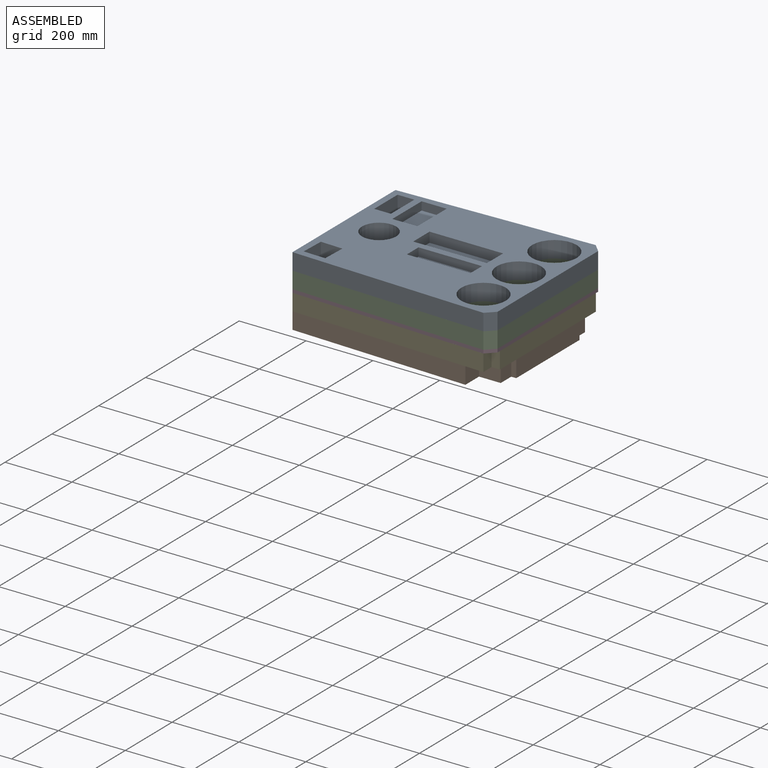
[diagram: assembled view]
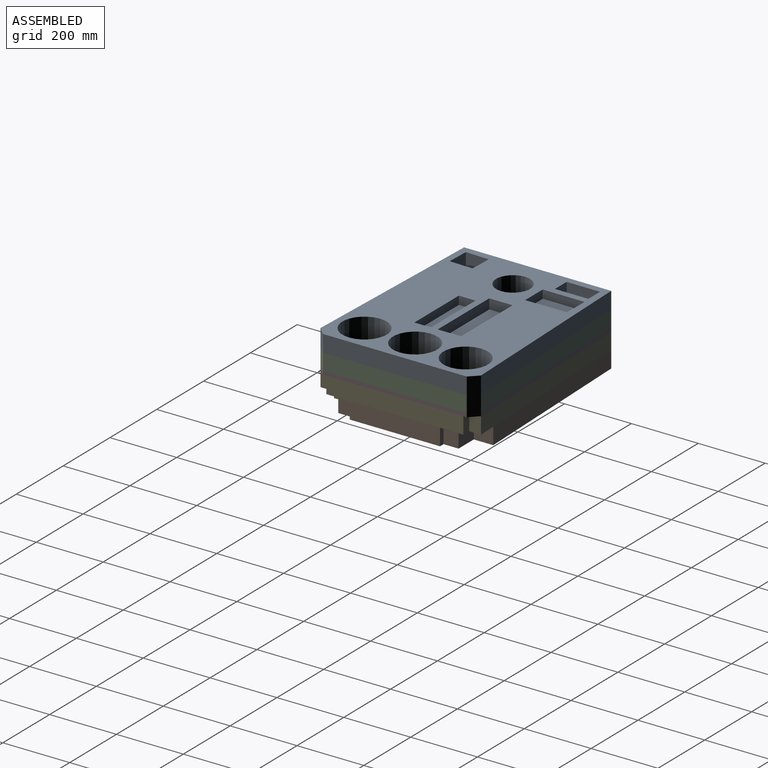
[diagram: assembled view, second angle]
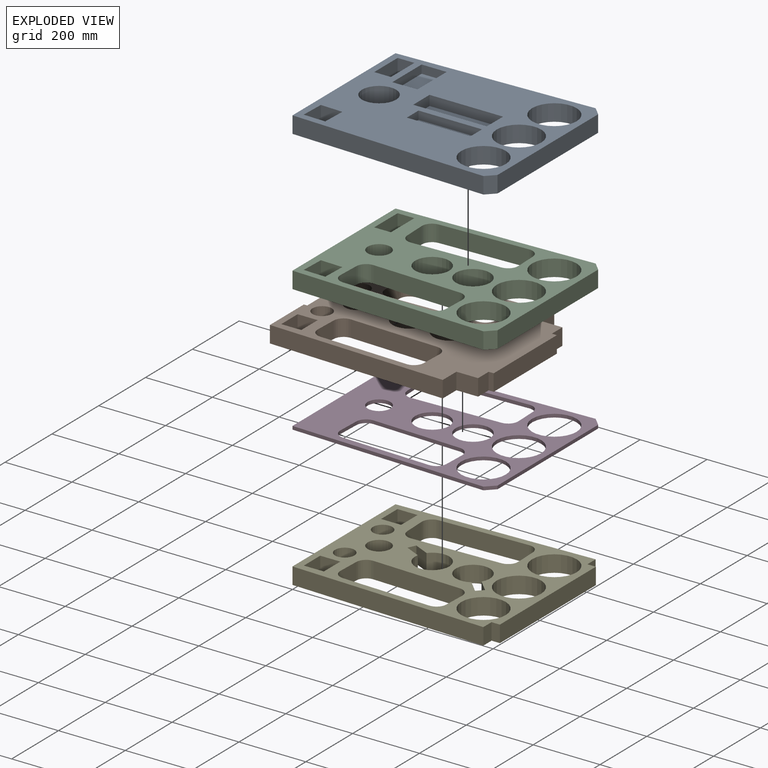
[diagram: exploded view]
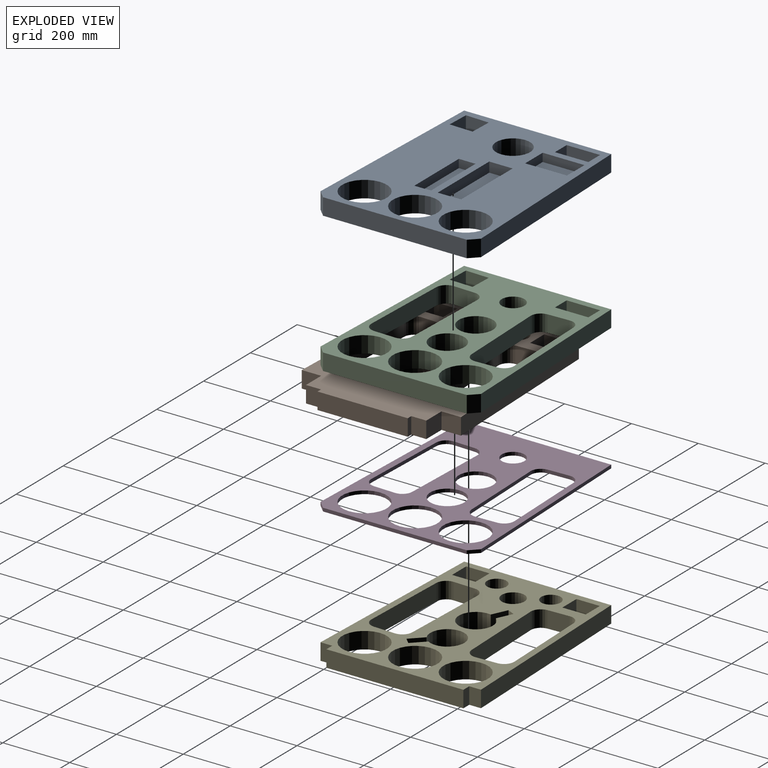
[diagram: exploded view, second angle]
ASSEMBLY  parts=5 mates=12
PART A: 35 faces, bbox 610x480x50 mm
  f0: plane 610x480mm, normal (0,0,1), area 186730mm2, adj f1,f2,f3,f4,f5,f6,f8,f9
  f1: plane 50x25mm, normal (0.71,0.71,0), area 1767.8mm2, adj f0,f2,f6,f7
  f2: plane 585x50mm, normal (-0.03,1,0), area 29267.1mm2, adj f0,f1,f3,f7
  f3: plane 440x50mm, normal (-1,0,0), area 22000mm2, adj f0,f2,f4,f7
  f4: plane 585x50mm, normal (-0.03,-1,0), area 29267.1mm2, adj f0,f3,f5,f7
  f5: plane 50x25mm, normal (0.71,-0.71,0), area 1767.8mm2, adj f0,f4,f6,f7
  f6: plane 430x50mm, normal (1,0,0), area 21500mm2, adj f0,f1,f5,f7
  f7: plane 610x480mm, normal (0,0,-1), area 221005mm2, adj f1,f2,f3,f4,f5,f6,f8,f9
  f8: cylinder r=66.5mm len=133mm, axis (0,0,1), area 20891.6mm2, adj f0,f7
  f9: cylinder r=66.5mm len=133mm, axis (0,0,1), area 20891.6mm2, adj f0,f7
  f10: cylinder r=66.5mm len=133mm, axis (0,0,1), area 20891.6mm2, adj f0,f7
  f11: cylinder r=51mm len=102mm, axis (0,0,1), area 16022.1mm2, adj f0,f7
  f12: plane 220x30mm, normal (0,-1,0), area 6600mm2, adj f0,f13,f15,f16
  f13: plane 70x30mm, normal (1,0,0), area 2100mm2, adj f0,f12,f14,f16
  f14: plane 220x30mm, normal (0,1,0), area 6600mm2, adj f0,f13,f15,f16
  f15: plane 70x30mm, normal (-1,0,0), area 2100mm2, adj f0,f12,f14,f16
  f16: plane 220x70mm, normal (0,0,1), area 15400mm2, adj f12,f13,f14,f15
  f17: plane 69.96x50mm, normal (1,-0.03,0), area 3500mm2, adj f0,f7,f18,f19
  f18: plane 65.96x50mm, normal (-0.03,-1,0), area 3300mm2, adj f0,f7,f17,f20
  f19: plane 65.96x50mm, normal (0.03,1,0), area 3300mm2, adj f0,f7,f17,f20
  f20: plane 69.96x50mm, normal (-1,0.03,0), area 3500mm2, adj f0,f7,f18,f19
  f21: plane 100x50mm, normal (1,0,0), area 5000mm2, adj f0,f7,f22,f23
  f22: plane 50x50mm, normal (0,-1,0), area 2500mm2, adj f0,f7,f21,f24
  f23: plane 50x50mm, normal (0,1,0), area 2500mm2, adj f0,f7,f21,f24
  f24: plane 100x50mm, normal (-1,0,0), area 5000mm2, adj f0,f7,f22,f23
  f25: plane 190x25mm, normal (0,-1,0), area 4750mm2, adj f0,f26,f28,f29
  f26: plane 50x25mm, normal (1,0,0), area 1250mm2, adj f0,f25,f27,f29
  f27: plane 190x25mm, normal (0,1,0), area 4750mm2, adj f0,f26,f28,f29
  f28: plane 50x25mm, normal (-1,0,0), area 1250mm2, adj f0,f25,f27,f29
  f29: plane 190x50mm, normal (0,0,1), area 9500mm2, adj f25,f26,f27,f28
  f30: plane 75x25mm, normal (0,-1,0), area 1875mm2, adj f0,f31,f33,f34
  f31: plane 125x25mm, normal (1,0,0), area 3125mm2, adj f0,f30,f32,f34
  f32: plane 75x25mm, normal (0,1,0), area 1875mm2, adj f0,f31,f33,f34
  f33: plane 125x25mm, normal (-1,0,0), area 3125mm2, adj f0,f30,f32,f34
  f34: plane 125x75mm, normal (0,0,1), area 9375mm2, adj f30,f31,f32,f33
PART B: 47 faces, bbox 610x476.2x50 mm
  f0: plane 610x476.24mm, normal (0,0,1), area 155390.1mm2, adj f1,f2,f3,f4,f6,f7,f8,f9
  f1: plane 270x50mm, normal (1,0,0), area 13500mm2, adj f0,f5,f35,f37
  f2: plane 65x50mm, normal (0,1,0), area 3250mm2, adj f0,f5,f33,f38
  f3: plane 65x50mm, normal (0,-1,0), area 3250mm2, adj f0,f5,f34,f36
  f4: plane 530x50mm, normal (-0.03,-1,0), area 26515.5mm2, adj f0,f5,f11,f34
  f5: plane 610x476.24mm, normal (0,0,-1), area 155390.1mm2, adj f1,f2,f3,f4,f6,f7,f8,f9
  f6: plane 530x50mm, normal (-0.03,1,0), area 26515.5mm2, adj f0,f5,f7,f33
  f7: plane 145x50mm, normal (-1,0,0), area 7250mm2, adj f0,f5,f6,f8
  f8: plane 50x10mm, normal (0,-1,0), area 500mm2, adj f0,f5,f7,f9
  f9: plane 150x50mm, normal (-1,0,0), area 7500mm2, adj f0,f5,f8,f10
  f10: plane 50x10mm, normal (0,1,0), area 500mm2, adj f0,f5,f9,f11
  f11: plane 145x50mm, normal (-1,0,0), area 7250mm2, adj f0,f4,f5,f10
  f12: plane 64.96x50mm, normal (1,-0.03,0), area 3250mm2, adj f0,f5,f43,f44
  f13: plane 264.85x50mm, normal (-0.03,-1,0), area 13250mm2, adj f0,f5,f43,f45
  f14: plane 264.85x50mm, normal (0.03,1,0), area 13250mm2, adj f0,f5,f44,f46
  f15: plane 64.96x50mm, normal (-1,0.03,0), area 3250mm2, adj f0,f5,f45,f46
  f16: plane 64.96x50mm, normal (1,0.03,0), area 3250mm2, adj f0,f5,f39,f40
  f17: plane 264.85x50mm, normal (0.03,-1,0), area 13250mm2, adj f0,f5,f39,f41
  f18: plane 264.85x50mm, normal (-0.03,1,0), area 13250mm2, adj f0,f5,f40,f42
  f19: plane 64.96x50mm, normal (-1,-0.03,0), area 3250mm2, adj f0,f5,f41,f42
  f20: cylinder r=51mm len=102mm, axis (0,0,1), area 16022.1mm2, adj f0,f5
  f21: cylinder r=51mm len=102mm, axis (0,0,1), area 16022.1mm2, adj f0,f5
  f22: cylinder r=34mm len=68mm, axis (0,0,1), area 10681.4mm2, adj f0,f5
  f23: plane 60x50mm, normal (0,1,0), area 3000mm2, adj f0,f5,f24,f25
  f24: plane 70x50mm, normal (1,0,0), area 3500mm2, adj f0,f5,f23,f26
  f25: plane 70x50mm, normal (-1,0,0), area 3500mm2, adj f0,f5,f23,f26
  f26: plane 60x50mm, normal (0,-1,0), area 3000mm2, adj f0,f5,f24,f25
  f27: plane 70x50mm, normal (1,0,0), area 3500mm2, adj f0,f5,f28,f29
  f28: plane 60x50mm, normal (0,-1,0), area 3000mm2, adj f0,f5,f27,f30
  f29: plane 60x50mm, normal (0,1,0), area 3000mm2, adj f0,f5,f27,f30
  f30: plane 70x50mm, normal (-1,0,0), area 3500mm2, adj f0,f5,f28,f29
  f31: cylinder r=29mm len=58mm, axis (0,0,1), area 9110.6mm2, adj f0,f5
  f32: cylinder r=29mm len=58mm, axis (0,0,1), area 9110.6mm2, adj f0,f5
  f33: plane 58.12x50mm, normal (1,0,0), area 2906mm2, adj f0,f2,f5,f6
  f34: plane 58.12x50mm, normal (1,0,0), area 2906mm2, adj f0,f3,f4,f5
  f35: plane 50x15mm, normal (0,-1,0), area 750mm2, adj f0,f1,f5,f36
  f36: plane 50x45mm, normal (1,0,0), area 2250mm2, adj f0,f3,f5,f35
  f37: plane 50x15mm, normal (0,1,0), area 750mm2, adj f0,f1,f5,f38
  f38: plane 50x45mm, normal (1,0,0), area 2250mm2, adj f0,f2,f5,f37
  f39: cylinder r=30mm len=50mm, axis (0,0,1), area 2356.2mm2, adj f0,f5,f16,f17
  f40: cylinder r=30mm len=50mm, axis (0,0,-1), area 2356.2mm2, adj f0,f5,f16,f18
  f41: cylinder r=30mm len=50mm, axis (0,0,-1), area 2356.2mm2, adj f0,f5,f17,f19
  f42: cylinder r=30mm len=50mm, axis (0,0,1), area 2356.2mm2, adj f0,f5,f18,f19
  f43: cylinder r=30mm len=50mm, axis (0,0,1), area 2356.2mm2, adj f0,f5,f12,f13
  f44: cylinder r=30mm len=50mm, axis (0,0,-1), area 2356.2mm2, adj f0,f5,f12,f14
  f45: cylinder r=30mm len=50mm, axis (0,0,-1), area 2356.2mm2, adj f0,f5,f13,f15
  f46: cylinder r=30mm len=50mm, axis (0,0,1), area 2356.2mm2, adj f0,f5,f14,f15
PART C: 38 faces, bbox 610x480x50 mm
  f0: plane 50x25mm, normal (0.71,0.71,0), area 1767.8mm2, adj f1,f5,f6,f7
  f1: plane 585x50mm, normal (-0.03,1,0), area 29267.1mm2, adj f0,f2,f6,f7
  f2: plane 440x50mm, normal (-1,0,0), area 22000mm2, adj f1,f3,f6,f7
  f3: plane 585x50mm, normal (-0.03,-1,0), area 29267.1mm2, adj f2,f4,f6,f7
  f4: plane 50x25mm, normal (0.71,-0.71,0), area 1767.8mm2, adj f3,f5,f6,f7
  f5: plane 430x50mm, normal (1,0,0), area 21500mm2, adj f0,f4,f6,f7
  f6: plane 610x480mm, normal (0,0,1), area 129497.2mm2, adj f0,f1,f2,f3,f4,f5,f8,f9
  f7: plane 610x480mm, normal (0,0,-1), area 129497.2mm2, adj f0,f1,f2,f3,f4,f5,f8,f9
  f8: cylinder r=66.5mm len=133mm, axis (0,0,1), area 20891.6mm2, adj f6,f7
  f9: plane 64.96x50mm, normal (1,-0.03,0), area 3250mm2, adj f6,f7,f34,f35
  f10: plane 264.85x50mm, normal (-0.03,-1,0), area 13250mm2, adj f6,f7,f34,f36
  f11: plane 264.85x50mm, normal (0.03,1,0), area 13250mm2, adj f6,f7,f35,f37
  f12: plane 64.96x50mm, normal (-1,0.03,0), area 3250mm2, adj f6,f7,f36,f37
  f13: cylinder r=66.5mm len=133mm, axis (0,0,1), area 20891.6mm2, adj f6,f7
  f14: plane 64.96x50mm, normal (1,0.03,0), area 3250mm2, adj f6,f7,f30,f31
  f15: plane 264.85x50mm, normal (0.03,-1,0), area 13250mm2, adj f6,f7,f30,f32
  f16: plane 264.85x50mm, normal (-0.03,1,0), area 13250mm2, adj f6,f7,f31,f33
  f17: plane 64.96x50mm, normal (-1,-0.03,0), area 3250mm2, adj f6,f7,f32,f33
  f18: cylinder r=66.5mm len=133mm, axis (0,0,1), area 20891.6mm2, adj f6,f7
  f19: cylinder r=51mm len=102mm, axis (0,0,1), area 16022.1mm2, adj f6,f7
  f20: cylinder r=51mm len=102mm, axis (0,0,1), area 16022.1mm2, adj f6,f7
  f21: cylinder r=34mm len=68mm, axis (0,0,1), area 10681.4mm2, adj f6,f7
  f22: plane 69.96x50mm, normal (1,-0.03,0), area 3500mm2, adj f6,f7,f23,f24
  f23: plane 65.96x50mm, normal (-0.03,-1,0), area 3300mm2, adj f6,f7,f22,f25
  f24: plane 65.96x50mm, normal (0.03,1,0), area 3300mm2, adj f6,f7,f22,f25
  f25: plane 69.96x50mm, normal (-1,0.03,0), area 3500mm2, adj f6,f7,f23,f24
  f26: plane 100x50mm, normal (1,0,0), area 5000mm2, adj f6,f7,f27,f28
  f27: plane 50x50mm, normal (0,-1,0), area 2500mm2, adj f6,f7,f26,f29
  f28: plane 50x50mm, normal (0,1,0), area 2500mm2, adj f6,f7,f26,f29
  f29: plane 100x50mm, normal (-1,0,0), area 5000mm2, adj f6,f7,f27,f28
  f30: cylinder r=30mm len=50mm, axis (0,0,1), area 2356.2mm2, adj f6,f7,f14,f15
  f31: cylinder r=30mm len=50mm, axis (0,0,-1), area 2356.2mm2, adj f6,f7,f14,f16
  f32: cylinder r=30mm len=50mm, axis (0,0,-1), area 2356.2mm2, adj f6,f7,f15,f17
  f33: cylinder r=30mm len=50mm, axis (0,0,1), area 2356.2mm2, adj f6,f7,f16,f17
  f34: cylinder r=30mm len=50mm, axis (0,0,1), area 2356.2mm2, adj f6,f7,f9,f10
  f35: cylinder r=30mm len=50mm, axis (0,0,-1), area 2356.2mm2, adj f6,f7,f9,f11
  f36: cylinder r=30mm len=50mm, axis (0,0,-1), area 2356.2mm2, adj f6,f7,f10,f12
  f37: cylinder r=30mm len=50mm, axis (0,0,1), area 2356.2mm2, adj f6,f7,f11,f12
PART D: 30 faces, bbox 610x480x10 mm
  f0: plane 25x25mm, normal (0.71,0.71,0), area 353.6mm2, adj f1,f5,f6,f7
  f1: plane 585x20mm, normal (-0.03,1,0), area 5853.4mm2, adj f0,f2,f6,f7
  f2: plane 440x10mm, normal (-1,0,0), area 4400mm2, adj f1,f3,f6,f7
  f3: plane 585x20mm, normal (-0.03,-1,0), area 5853.4mm2, adj f2,f4,f6,f7
  f4: plane 25x25mm, normal (0.71,-0.71,0), area 353.6mm2, adj f3,f5,f6,f7
  f5: plane 430x10mm, normal (1,0,0), area 4300mm2, adj f0,f4,f6,f7
  f6: plane 610x480mm, normal (0,0,1), area 139117.2mm2, adj f0,f1,f2,f3,f4,f5,f8,f9
  f7: plane 610x480mm, normal (0,0,-1), area 139117.2mm2, adj f0,f1,f2,f3,f4,f5,f8,f9
  f8: cylinder r=66.5mm len=133mm, axis (0,0,1), area 4178.3mm2, adj f6,f7
  f9: plane 64.96x10mm, normal (1,-0.03,0), area 650mm2, adj f6,f7,f26,f27
  f10: plane 264.85x10mm, normal (-0.03,-1,0), area 2650mm2, adj f6,f7,f26,f28
  f11: plane 264.85x10mm, normal (0.03,1,0), area 2650mm2, adj f6,f7,f27,f29
  f12: plane 64.96x10mm, normal (-1,0.03,0), area 650mm2, adj f6,f7,f28,f29
  f13: cylinder r=66.5mm len=133mm, axis (0,0,1), area 4178.3mm2, adj f6,f7
  f14: plane 64.96x10mm, normal (1,0.03,0), area 650mm2, adj f6,f7,f22,f23
  f15: plane 264.85x10mm, normal (0.03,-1,0), area 2650mm2, adj f6,f7,f22,f24
  f16: plane 264.85x10mm, normal (-0.03,1,0), area 2650mm2, adj f6,f7,f23,f25
  f17: plane 64.96x10mm, normal (-1,-0.03,0), area 650mm2, adj f6,f7,f24,f25
  f18: cylinder r=66.5mm len=133mm, axis (0,0,1), area 4178.3mm2, adj f6,f7
  f19: cylinder r=51mm len=102mm, axis (0,0,1), area 3204.4mm2, adj f6,f7
  f20: cylinder r=51mm len=102mm, axis (0,0,1), area 3204.4mm2, adj f6,f7
  f21: cylinder r=34mm len=68mm, axis (0,0,1), area 2136.3mm2, adj f6,f7
  f22: cylinder r=30mm len=31.01mm, axis (0,0,1), area 471.2mm2, adj f6,f7,f14,f15
  f23: cylinder r=30mm len=31.01mm, axis (0,0,-1), area 471.2mm2, adj f6,f7,f14,f16
  f24: cylinder r=30mm len=31.01mm, axis (0,0,-1), area 471.2mm2, adj f6,f7,f15,f17
  f25: cylinder r=30mm len=31.01mm, axis (0,0,1), area 471.2mm2, adj f6,f7,f16,f17
  f26: cylinder r=30mm len=31.01mm, axis (0,0,1), area 471.2mm2, adj f6,f7,f9,f10
  f27: cylinder r=30mm len=31.01mm, axis (0,0,-1), area 471.2mm2, adj f6,f7,f9,f11
  f28: cylinder r=30mm len=31.01mm, axis (0,0,-1), area 471.2mm2, adj f6,f7,f10,f12
  f29: cylinder r=30mm len=31.01mm, axis (0,0,1), area 471.2mm2, adj f6,f7,f11,f12
PART E: 48 faces, bbox 610x480x50 mm
  f0: plane 610x480mm, normal (0,0,1), area 121860mm2, adj f2,f3,f4,f5,f6,f7,f8,f9
  f1: plane 610x480mm, normal (0,0,-1), area 121860mm2, adj f2,f3,f4,f5,f6,f7,f8,f9
  f2: plane 410x50mm, normal (1,0,0), area 20500mm2, adj f0,f1,f37,f38
  f3: plane 585x50mm, normal (-0.03,1,0), area 29267.1mm2, adj f0,f1,f4,f36
  f4: plane 440x50mm, normal (-1,0,0), area 22000mm2, adj f0,f1,f3,f5
  f5: plane 585x50mm, normal (-0.03,-1,0), area 29267.1mm2, adj f0,f1,f4,f39
  f6: cylinder r=66.5mm len=133mm, axis (0,0,1), area 20891.6mm2, adj f0,f1
  f7: plane 64.96x50mm, normal (1,-0.03,0), area 3250mm2, adj f0,f1,f44,f45
  f8: plane 264.85x50mm, normal (-0.03,-1,0), area 13250mm2, adj f0,f1,f44,f46
  f9: plane 264.85x50mm, normal (0.03,1,0), area 13250mm2, adj f0,f1,f45,f47
  f10: plane 64.96x50mm, normal (-1,0.03,0), area 3250mm2, adj f0,f1,f46,f47
  f11: cylinder r=66.5mm len=133mm, axis (0,0,1), area 20891.6mm2, adj f0,f1
  f12: plane 64.96x50mm, normal (1,0.03,0), area 3250mm2, adj f0,f1,f40,f41
  f13: plane 264.85x50mm, normal (0.03,-1,0), area 13250mm2, adj f0,f1,f40,f42
  f14: plane 264.85x50mm, normal (-0.03,1,0), area 13250mm2, adj f0,f1,f41,f43
  f15: plane 64.96x50mm, normal (-1,-0.03,0), area 3250mm2, adj f0,f1,f42,f43
  f16: cylinder r=66.5mm len=133mm, axis (0,0,1), area 20891.6mm2, adj f0,f1
  f17: cylinder r=51mm len=102mm, axis (0,0,1), area 14759.3mm2, adj f0,f1,f18,f19
  f18: plane 50x35.36mm, normal (-0.71,-0.71,0), area 2500mm2, adj f0,f1,f17,f20
  f19: plane 50x35.36mm, normal (0.71,0.71,0), area 2500mm2, adj f0,f1,f17,f20
  f20: plane 50x17.68mm, normal (-0.71,0.71,0), area 1250mm2, adj f0,f1,f18,f19
  f21: plane 50x45.32mm, normal (0.42,0.91,0), area 2500mm2, adj f0,f1,f22,f24
  f22: cylinder r=51mm len=102mm, axis (0,0,1), area 14759.3mm2, adj f0,f1,f21,f23
  f23: plane 50x45.32mm, normal (-0.42,-0.91,0), area 2500mm2, adj f0,f1,f22,f24
  f24: plane 50x22.66mm, normal (0.91,-0.42,0), area 1250mm2, adj f0,f1,f21,f23
  f25: cylinder r=34mm len=68mm, axis (0,0,1), area 10681.4mm2, adj f0,f1
  f26: plane 60x50mm, normal (0,1,0), area 3000mm2, adj f0,f1,f27,f28
  f27: plane 70x50mm, normal (1,0,0), area 3500mm2, adj f0,f1,f26,f29
  f28: plane 70x50mm, normal (-1,0,0), area 3500mm2, adj f0,f1,f26,f29
  f29: plane 60x50mm, normal (0,-1,0), area 3000mm2, adj f0,f1,f27,f28
  f30: plane 70x50mm, normal (1,0,0), area 3500mm2, adj f0,f1,f31,f32
  f31: plane 60x50mm, normal (0,-1,0), area 3000mm2, adj f0,f1,f30,f33
  f32: plane 60x50mm, normal (0,1,0), area 3000mm2, adj f0,f1,f30,f33
  f33: plane 70x50mm, normal (-1,0,0), area 3500mm2, adj f0,f1,f31,f32
  f34: cylinder r=29mm len=58mm, axis (0,0,1), area 9110.6mm2, adj f0,f1
  f35: cylinder r=29mm len=58mm, axis (0,0,1), area 9110.6mm2, adj f0,f1
  f36: plane 50x35mm, normal (1,0,0), area 1750mm2, adj f0,f1,f3,f37
  f37: plane 50x25mm, normal (0,1,0), area 1250mm2, adj f0,f1,f2,f36
  f38: plane 50x25mm, normal (0,-1,0), area 1250mm2, adj f0,f1,f2,f39
  f39: plane 50x35mm, normal (1,0,0), area 1750mm2, adj f0,f1,f5,f38
  f40: cylinder r=30mm len=50mm, axis (0,0,1), area 2356.2mm2, adj f0,f1,f12,f13
  f41: cylinder r=30mm len=50mm, axis (0,0,-1), area 2356.2mm2, adj f0,f1,f12,f14
  f42: cylinder r=30mm len=50mm, axis (0,0,-1), area 2356.2mm2, adj f0,f1,f13,f15
  f43: cylinder r=30mm len=50mm, axis (0,0,1), area 2356.2mm2, adj f0,f1,f14,f15
  f44: cylinder r=30mm len=50mm, axis (0,0,1), area 2356.2mm2, adj f0,f1,f7,f8
  f45: cylinder r=30mm len=50mm, axis (0,0,-1), area 2356.2mm2, adj f0,f1,f7,f9
  f46: cylinder r=30mm len=50mm, axis (0,0,-1), area 2356.2mm2, adj f0,f1,f8,f10
  f47: cylinder r=30mm len=50mm, axis (0,0,1), area 2356.2mm2, adj f0,f1,f9,f10
PLACE A t=(0,0,110)mm
PLACE B t=(0,0,-50)mm
PLACE C t=(0,0,60)mm
PLACE D t=(0,0,50)mm
PLACE E at identity fixed
MATE planar E.f5 <-> B.f4  axis (-0.03,-1,0) through (292.5,-10,25)mm
MATE planar A.f10 <-> C.f6  axis (0,0,-1) through (523.5,220,110)mm
MATE cylindrical A.f9 <-> C.f13  axis (0,0,1) through (523.5,371.35,135)mm
MATE cylindrical A.f8 <-> C.f8  axis (0,0,1) through (523.5,68.65,160)mm
MATE planar E.f2 <-> B.f1  axis (1,0,0) through (610,220,25)mm
MATE planar B.f0 <-> E.f1  axis (0,0,1) through (10,220,0)mm
MATE cylindrical C.f8 <-> E.f6  axis (0,0,1) through (523.5,68.65,85)mm
MATE cylindrical D.f13 <-> E.f11  axis (0,0,1) through (523.5,371.35,55)mm
MATE cylindrical D.f8 <-> E.f6  axis (0,0,1) through (523.5,68.65,55)mm
MATE planar E.f0 <-> D.f7  axis (0,0,1) through (287.84,220.21,50)mm
MATE planar C.f19 <-> D.f19  axis (0,0,-1) through (386,220,60)mm
MATE cylindrical C.f13 <-> E.f11  axis (0,0,1) through (523.5,371.35,85)mm
